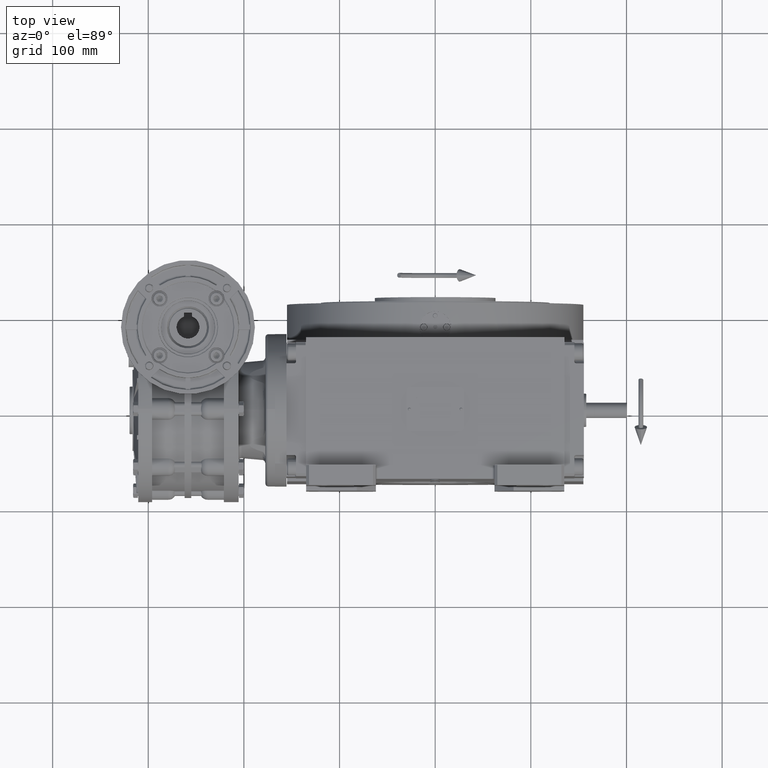
[diagram: clean part render]
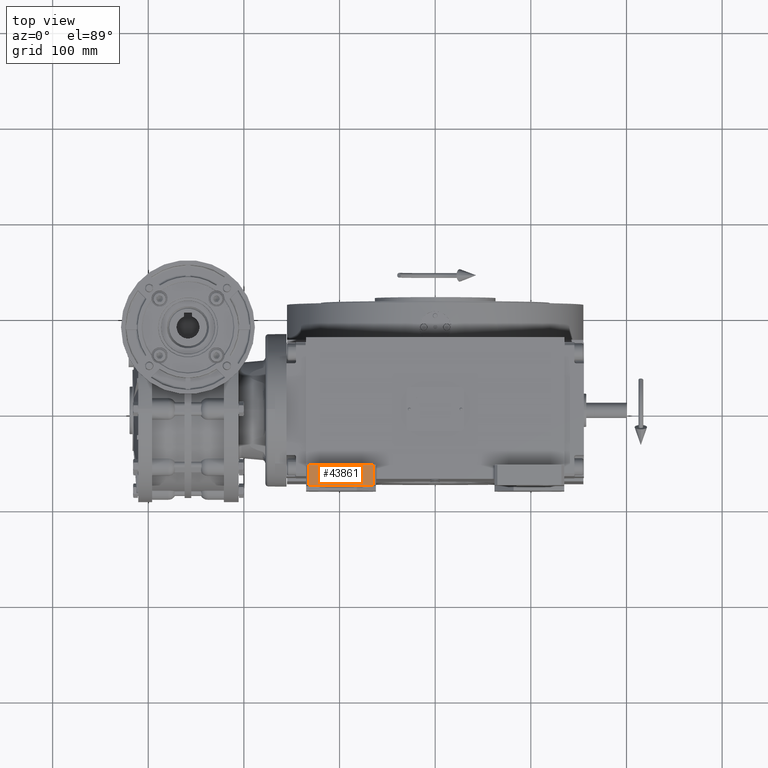
[diagram: same view with one face highlighted and labeled with its STEP entity id]
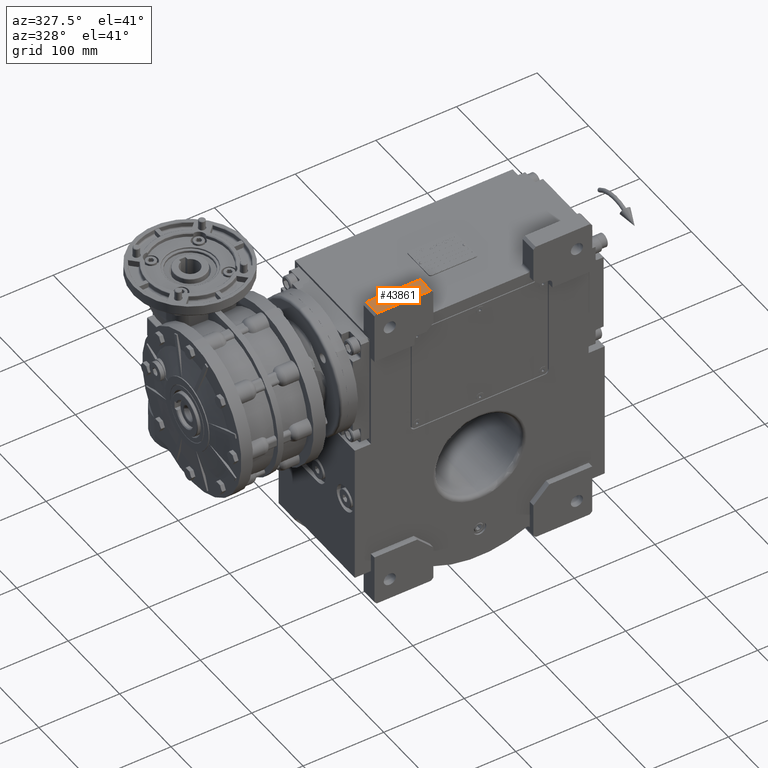
[diagram: same view with one face highlighted and labeled with its STEP entity id]
A machine part, top view. The second image highlights one B-rep face of the part: STEP entity #43861.
A second angle (auxiliary view) of the same face is appended — the face is thin or edge-on in the first view.
In plain terms, the highlighted planar face has unit normal (0, 0, 1).
Its self-contained STEP definition (entity closure, byte-faithful):
#2811 = DIRECTION ( 'NONE',  ( -1.000000000000000000, 0.000000000000000000, 0.000000000000000000 ) ) ;
#5128 = EDGE_CURVE ( 'NONE', #50234, #52742, #62884, .T. ) ;
#6802 = CARTESIAN_POINT ( 'NONE',  ( -65.00000000000000000, -59.00000000000000000, 265.0000000000000000 ) ) ;
#14330 = CARTESIAN_POINT ( 'NONE',  ( -132.0000000000000000, -59.00000000000000000, 265.0000000000000000 ) ) ;
#24504 = EDGE_LOOP ( 'NONE', ( #37949, #41005, #104282, #79604 ) ) ;
#27917 = CARTESIAN_POINT ( 'NONE',  ( -65.00000000000000000, -59.00000000000000000, 265.0000000000000000 ) ) ;
#29465 = LINE ( 'NONE', #82490, #55002 ) ;
#31662 = DIRECTION ( 'NONE',  ( 0.000000000000000000, 1.000000000000000000, 0.000000000000000000 ) ) ;
#37949 = ORIENTED_EDGE ( 'NONE', *, *, #5128, .T. ) ;
#38976 = VERTEX_POINT ( 'NONE', #96845 ) ;
#39639 = LINE ( 'NONE', #64721, #64240 ) ;
#41005 = ORIENTED_EDGE ( 'NONE', *, *, #49550, .F. ) ;
#43861 = ADVANCED_FACE ( 'NONE', ( #107394 ), #89921, .T. ) ;
#48564 = LINE ( 'NONE', #84138, #79510 ) ;
#49550 = EDGE_CURVE ( 'NONE', #38976, #52742, #39639, .T. ) ;
#50234 = VERTEX_POINT ( 'NONE', #6802 ) ;
#50458 = EDGE_CURVE ( 'NONE', #84213, #38976, #29465, .T. ) ;
#52742 = VERTEX_POINT ( 'NONE', #14330 ) ;
#54373 = DIRECTION ( 'NONE',  ( 0.000000000000000000, 0.000000000000000000, 1.000000000000000000 ) ) ;
#55002 = VECTOR ( 'NONE', #100565, 1000.000000000000000 ) ;
#59849 = AXIS2_PLACEMENT_3D ( 'NONE', #70703, #54373, #80016 ) ;
#62884 = LINE ( 'NONE', #27917, #112078 ) ;
#64240 = VECTOR ( 'NONE', #109578, 1000.000000000000000 ) ;
#64721 = CARTESIAN_POINT ( 'NONE',  ( -132.0000000000000000, -80.00000000000000000, 265.0000000000000000 ) ) ;
#70703 = CARTESIAN_POINT ( 'NONE',  ( -62.00000000000000000, -59.00000000000000000, 265.0000000000000000 ) ) ;
#75200 = CARTESIAN_POINT ( 'NONE',  ( -65.00000000000000000, -80.00000000000000000, 265.0000000000000000 ) ) ;
#79510 = VECTOR ( 'NONE', #31662, 1000.000000000000000 ) ;
#79604 = ORIENTED_EDGE ( 'NONE', *, *, #83725, .T. ) ;
#80016 = DIRECTION ( 'NONE',  ( -1.000000000000000000, 0.000000000000000000, 0.000000000000000000 ) ) ;
#82490 = CARTESIAN_POINT ( 'NONE',  ( -65.00000000000000000, -80.00000000000000000, 265.0000000000000000 ) ) ;
#83725 = EDGE_CURVE ( 'NONE', #84213, #50234, #48564, .T. ) ;
#84138 = CARTESIAN_POINT ( 'NONE',  ( -65.00000000000000000, -80.00000000000000000, 265.0000000000000000 ) ) ;
#84213 = VERTEX_POINT ( 'NONE', #75200 ) ;
#89921 = PLANE ( 'NONE',  #59849 ) ;
#96845 = CARTESIAN_POINT ( 'NONE',  ( -132.0000000000000000, -80.00000000000000000, 265.0000000000000000 ) ) ;
#100565 = DIRECTION ( 'NONE',  ( -1.000000000000000000, 0.000000000000000000, 0.000000000000000000 ) ) ;
#104282 = ORIENTED_EDGE ( 'NONE', *, *, #50458, .F. ) ;
#107394 = FACE_OUTER_BOUND ( 'NONE', #24504, .T. ) ;
#109578 = DIRECTION ( 'NONE',  ( 0.000000000000000000, 1.000000000000000000, 0.000000000000000000 ) ) ;
#112078 = VECTOR ( 'NONE', #2811, 1000.000000000000000 ) ;